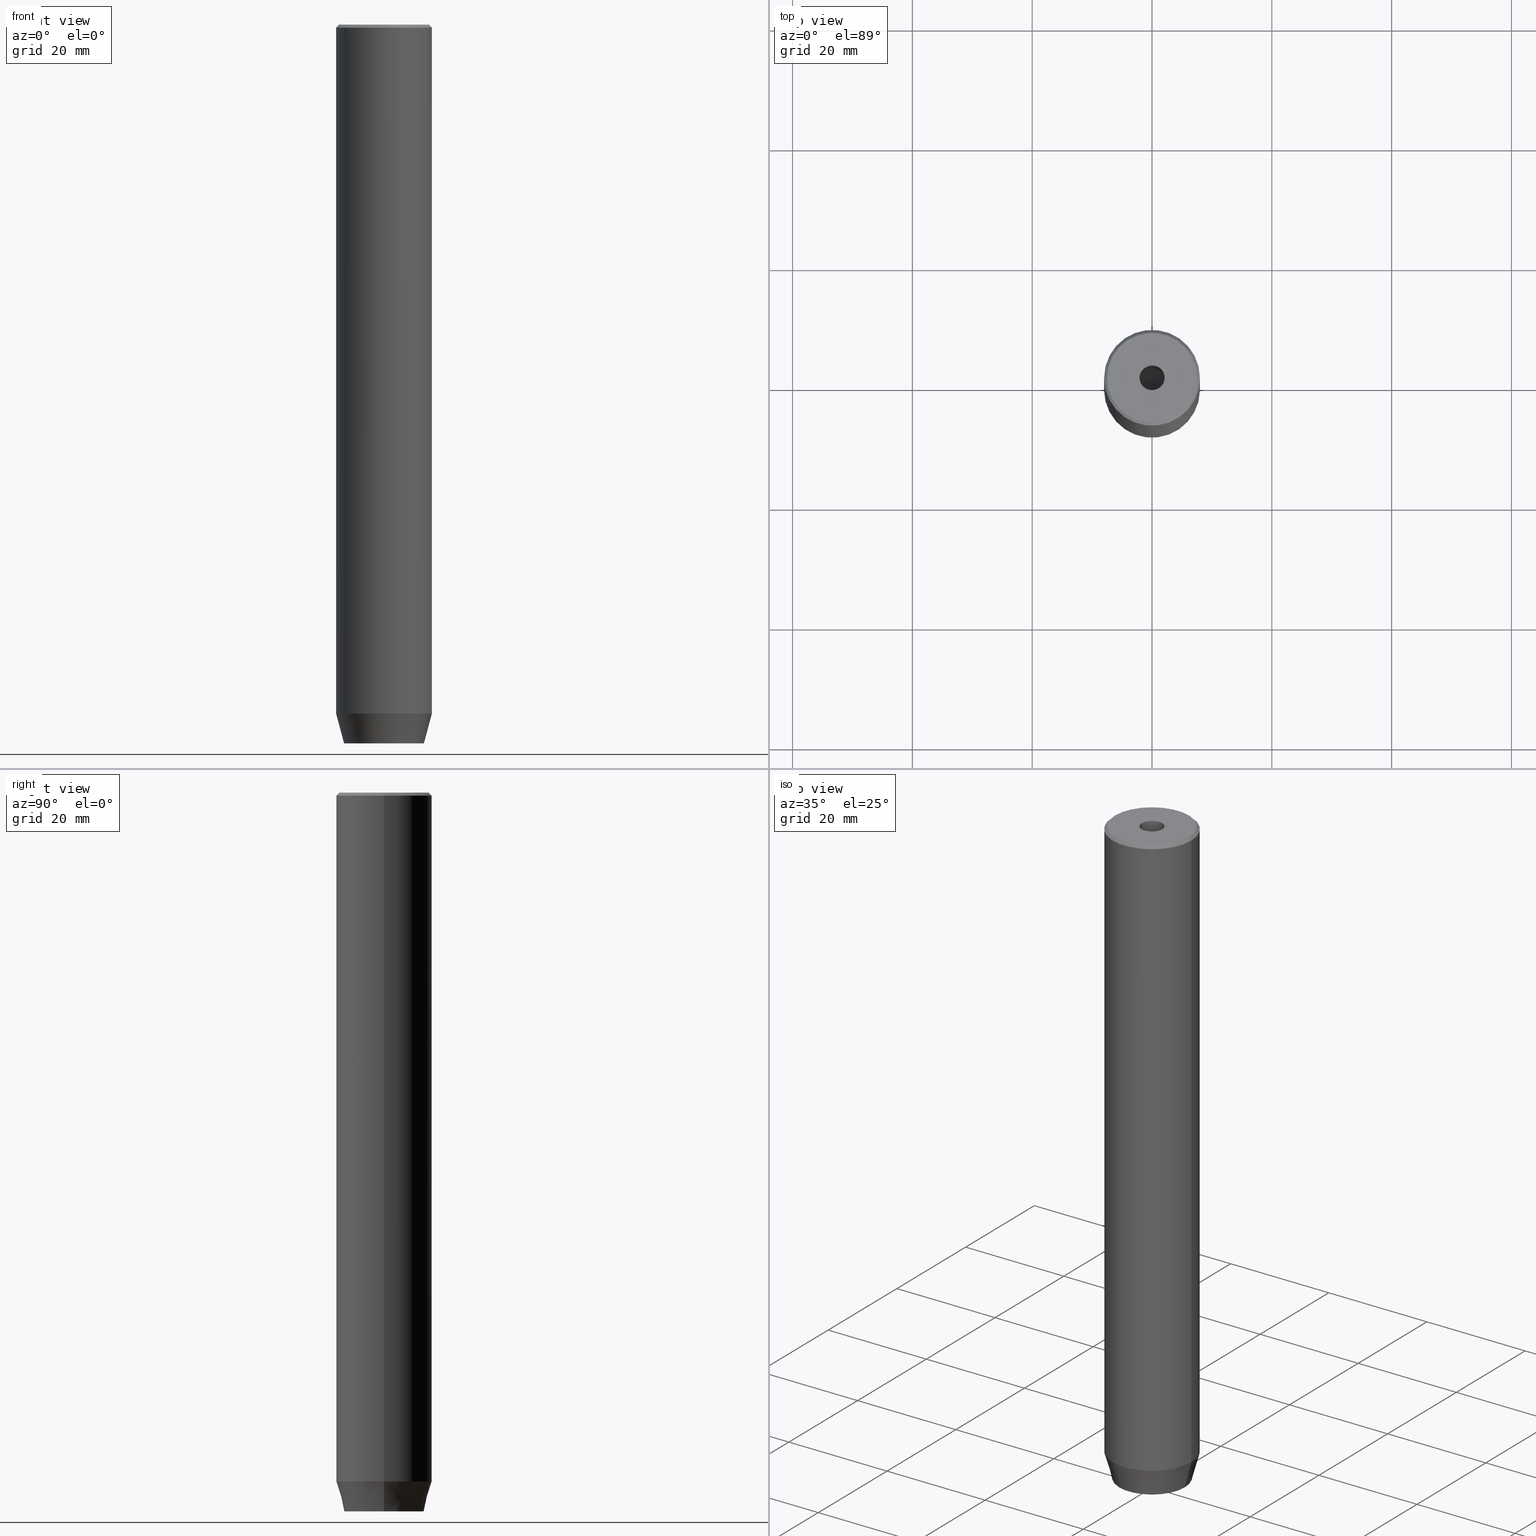
[diagram: canonical four-view strip — front | top / right | iso, engineering-drawing reading convention]
A machine part, canonical four-view strip (front | top / right | iso — engineering-drawing reading convention). The complete STEP part file that produces these views, byte-faithful:
ISO-10303-21;
HEADER;
FILE_DESCRIPTION (( 'STEP AP203' ),
    '1' );
FILE_NAME ('4951.STEP',
    '2024-01-02T20:39:47',
    ( '' ),
    ( '' ),
    'SwSTEP 2.0',
    'SolidWorks 2019',
    '' );
FILE_SCHEMA (( 'CONFIG_CONTROL_DESIGN' ));
ENDSEC;

DATA;
#1 = LINE ( 'NONE', #540, #206 ) ;
#2 = CARTESIAN_POINT ( 'NONE',  ( 0.000000000000000000, 0.000000000000000000, -20.00000000000000000 ) ) ;
#3 = AXIS2_PLACEMENT_3D ( 'NONE', #2, #49, #173 ) ;
#4 = VERTEX_POINT ( 'NONE', #41 ) ;
#5 = VECTOR ( 'NONE', #378, 1000.000000000000000 ) ;
#6 = CARTESIAN_POINT ( 'NONE',  ( -3.000000000000000444, -7.511572993685800087E-16, -120.0000000000000000 ) ) ;
#7 = DIRECTION ( 'NONE',  ( -0.000000000000000000, -0.000000000000000000, 1.000000000000000000 ) ) ;
#8 = PERSON_AND_ORGANIZATION ( #271, #510 ) ;
#9 = AXIS2_PLACEMENT_3D ( 'NONE', #104, #286, #417 ) ;
#10 = PLANE ( 'NONE',  #396 ) ;
#11 = DIRECTION ( 'NONE',  ( -0.000000000000000000, -0.000000000000000000, -1.000000000000000000 ) ) ;
#12 = ORIENTED_EDGE ( 'NONE', *, *, #315, .F. ) ;
#13 = LINE ( 'NONE', #243, #569 ) ;
#14 = LINE ( 'NONE', #184, #5 ) ;
#15 = VERTEX_POINT ( 'NONE', #97 ) ;
#16 = CARTESIAN_POINT ( 'NONE',  ( 2.099999999999996092, 0.000000000000000000, -20.00000000000000000 ) ) ;
#17 = DIRECTION ( 'NONE',  ( -0.8660254037844385966, -0.5000000000000001110, 0.000000000000000000 ) ) ;
#18 = DIRECTION ( 'NONE',  ( -0.000000000000000000, -0.000000000000000000, 1.000000000000000000 ) ) ;
#19 = CIRCLE ( 'NONE', #558, 6.660254037844381969 ) ;
#20 = ORIENTED_EDGE ( 'NONE', *, *, #446, .T. ) ;
#21 = EDGE_CURVE ( 'NONE', #580, #531, #525, .T. ) ;
#22 = LINE ( 'NONE', #279, #550 ) ;
#23 = CARTESIAN_POINT ( 'NONE',  ( 7.499999999999978684, 9.491012693391973982E-16, 0.000000000000000000 ) ) ;
#24 = ADVANCED_FACE ( 'NONE', ( #541 ), #515, .T. ) ;
#25 = CARTESIAN_POINT ( 'NONE',  ( -1.500000000000000666, -2.598076211353316456, -117.2000000000000028 ) ) ;
#26 = DIRECTION ( 'NONE',  ( 1.000000000000000000, 0.000000000000000000, 0.000000000000000000 ) ) ;
#27 = FACE_OUTER_BOUND ( 'NONE', #355, .T. ) ;
#28 = VERTEX_POINT ( 'NONE', #94 ) ;
#29 = VECTOR ( 'NONE', #492, 1000.000000000000000 ) ;
#30 = VECTOR ( 'NONE', #487, 1000.000000000000000 ) ;
#31 = FACE_OUTER_BOUND ( 'NONE', #277, .T. ) ;
#32 = EDGE_CURVE ( 'NONE', #4, #460, #273, .T. ) ;
#33 = CARTESIAN_POINT ( 'NONE',  ( 0.000000000000000000, 0.000000000000000000, 0.000000000000000000 ) ) ;
#34 = CARTESIAN_POINT ( 'NONE',  ( -3.000000000000000888, 1.732050807568876527, -117.2000000000000028 ) ) ;
#35 = APPLICATION_PROTOCOL_DEFINITION ( 'international standard', 'config_control_design', 1994, #432 ) ;
#36 = DIRECTION ( 'NONE',  ( 0.000000000000000000, 0.000000000000000000, 1.000000000000000000 ) ) ;
#37 = ORIENTED_EDGE ( 'NONE', *, *, #342, .T. ) ;
#38 = DIRECTION ( 'NONE',  ( 1.000000000000000000, 0.000000000000000000, 0.000000000000000000 ) ) ;
#39 = APPROVAL_DATE_TIME ( #581, #164 ) ;
#40 = ADVANCED_FACE ( 'NONE', ( #504 ), #265, .F. ) ;
#41 = CARTESIAN_POINT ( 'NONE',  ( -3.000000000000000888, 1.732050807568876527, -120.0000000000000000 ) ) ;
#42 = PERSON_AND_ORGANIZATION_ROLE ( 'design_supplier' ) ;
#43 = ORIENTED_EDGE ( 'NONE', *, *, #315, .T. ) ;
#44 = VECTOR ( 'NONE', #301, 1000.000000000000000 ) ;
#45 = CARTESIAN_POINT ( 'NONE',  ( -1.500000000000000666, -2.598076211353316456, -120.0000000000000000 ) ) ;
#46 = CARTESIAN_POINT ( 'NONE',  ( -1.499999999999999556, 2.598076211353316012, -117.2000000000000028 ) ) ;
#47 = ADVANCED_FACE ( 'NONE', ( #586 ), #169, .T. ) ;
#48 = ORIENTED_EDGE ( 'NONE', *, *, #512, .F. ) ;
#49 = DIRECTION ( 'NONE',  ( -0.000000000000000000, -0.000000000000000000, 1.000000000000000000 ) ) ;
#50 = COORDINATED_UNIVERSAL_TIME_OFFSET ( 1, 0, .AHEAD. ) ;
#51 = ORIENTED_EDGE ( 'NONE', *, *, #328, .T. ) ;
#52 = FACE_OUTER_BOUND ( 'NONE', #144, .T. ) ;
#53 = CARTESIAN_POINT ( 'NONE',  ( 0.000000000000000000, 0.000000000000000000, -1.990051048614449116E-16 ) ) ;
#54 = CIRCLE ( 'NONE', #280, 2.099999999999998757 ) ;
#55 = ORIENTED_EDGE ( 'NONE', *, *, #383, .F. ) ;
#56 = VECTOR ( 'NONE', #289, 1000.000000000000000 ) ;
#57 = EDGE_CURVE ( 'NONE', #392, #266, #100, .T. ) ;
#58 = PLANE ( 'NONE',  #166 ) ;
#59 = ORIENTED_EDGE ( 'NONE', *, *, #383, .T. ) ;
#60 = CARTESIAN_POINT ( 'NONE',  ( -2.168404344971008868E-16, -3.464101615137754830, -120.0000000000000000 ) ) ;
#61 = CARTESIAN_POINT ( 'NONE',  ( 1.500000000000000222, -2.598076211353315568, -117.2000000000000028 ) ) ;
#62 = AXIS2_PLACEMENT_3D ( 'NONE', #332, #521, #187 ) ;
#63 = DIRECTION ( 'NONE',  ( 0.000000000000000000, -0.000000000000000000, 1.000000000000000000 ) ) ;
#64 = EDGE_CURVE ( 'NONE', #313, #397, #365, .T. ) ;
#65 = ORIENTED_EDGE ( 'NONE', *, *, #459, .T. ) ;
#66 = CARTESIAN_POINT ( 'NONE',  ( 1.500000000000000222, 2.598076211353315568, -117.2000000000000028 ) ) ;
#67 = AXIS2_PLACEMENT_3D ( 'NONE', #423, #109, #26 ) ;
#68 = PLANE ( 'NONE',  #579 ) ;
#69 = EDGE_LOOP ( 'NONE', ( #455, #527, #445, #250 ) ) ;
#70 = DIRECTION ( 'NONE',  ( -0.8571673007021111124, 1.049727191138617217E-16, 0.5150380749100562650 ) ) ;
#71 = FACE_OUTER_BOUND ( 'NONE', #560, .T. ) ;
#72 = ORIENTED_EDGE ( 'NONE', *, *, #482, .T. ) ;
#73 = DIRECTION ( 'NONE',  ( -1.000000000000000000, 0.000000000000000000, -0.000000000000000000 ) ) ;
#74 = APPLICATION_CONTEXT ( 'configuration controlled 3d designs of mechanical parts and assemblies' ) ;
#75 = CIRCLE ( 'NONE', #475, 8.000000000000000000 ) ;
#76 = PLANE ( 'NONE',  #189 ) ;
#77 = CARTESIAN_POINT ( 'NONE',  ( -3.000000000000000000, -1.732050807568877859, -117.2000000000000028 ) ) ;
#78 = ADVANCED_FACE ( 'NONE', ( #148 ), #284, .F. ) ;
#79 = AXIS2_PLACEMENT_3D ( 'NONE', #490, #36, #81 ) ;
#80 = ORIENTED_EDGE ( 'NONE', *, *, #426, .T. ) ;
#81 = DIRECTION ( 'NONE',  ( 1.000000000000000000, 0.000000000000000000, 0.000000000000000000 ) ) ;
#82 = VERTEX_POINT ( 'NONE', #429 ) ;
#83 = CARTESIAN_POINT ( 'NONE',  ( -1.084202172485504434E-16, 3.464101615137754830, -117.2000000000000028 ) ) ;
#84 = PERSON_AND_ORGANIZATION ( #271, #510 ) ;
#85 = ORIENTED_EDGE ( 'NONE', *, *, #225, .F. ) ;
#86 = CIRCLE ( 'NONE', #154, 8.000000000000000000 ) ;
#87 = DATE_TIME_ROLE ( 'creation_date' ) ;
#88 = ORIENTED_EDGE ( 'NONE', *, *, #160, .F. ) ;
#89 = CARTESIAN_POINT ( 'NONE',  ( 3.000000000000000000, -1.732050807568876527, -120.0000000000000000 ) ) ;
#90 = ORIENTED_EDGE ( 'NONE', *, *, #342, .F. ) ;
#91 = ORIENTED_EDGE ( 'NONE', *, *, #188, .F. ) ;
#92 = EDGE_CURVE ( 'NONE', #460, #131, #466, .T. ) ;
#93 = CARTESIAN_POINT ( 'NONE',  ( -1.084202172485504434E-16, 3.464101615137754830, -117.2000000000000028 ) ) ;
#94 = CARTESIAN_POINT ( 'NONE',  ( -7.499999999999978684, 0.000000000000000000, 0.000000000000000000 ) ) ;
#95 = ORIENTED_EDGE ( 'NONE', *, *, #536, .T. ) ;
#96 = CYLINDRICAL_SURFACE ( 'NONE', #471, 2.099999999999997424 ) ;
#97 = CARTESIAN_POINT ( 'NONE',  ( -8.000000000000000000, 9.797174393178825657E-16, -0.5000000000000213163 ) ) ;
#98 = ORIENTED_EDGE ( 'NONE', *, *, #578, .F. ) ;
#99 = DIRECTION ( 'NONE',  ( -1.000000000000000000, 0.000000000000000000, -0.000000000000000000 ) ) ;
#100 = CIRCLE ( 'NONE', #3, 2.099999999999996092 ) ;
#101 = ADVANCED_FACE ( 'NONE', ( #287 ), #68, .F. ) ;
#102 = ORIENTED_EDGE ( 'NONE', *, *, #426, .F. ) ;
#103 = EDGE_CURVE ( 'NONE', #366, #402, #146, .T. ) ;
#104 = CARTESIAN_POINT ( 'NONE',  ( 0.000000000000000000, 0.000000000000000000, 0.000000000000000000 ) ) ;
#105 = VERTEX_POINT ( 'NONE', #23 ) ;
#106 = LINE ( 'NONE', #66, #567 ) ;
#107 = CARTESIAN_POINT ( 'NONE',  ( 3.000000000000000000, 1.732050807568876527, -120.0000000000000000 ) ) ;
#108 = DIRECTION ( 'NONE',  ( 1.000000000000000000, 0.000000000000000000, 0.000000000000000000 ) ) ;
#109 = DIRECTION ( 'NONE',  ( -0.000000000000000000, -0.000000000000000000, 1.000000000000000000 ) ) ;
#110 = ORIENTED_EDGE ( 'NONE', *, *, #92, .T. ) ;
#111 = DIRECTION ( 'NONE',  ( 0.000000000000000000, 0.000000000000000000, -1.000000000000000000 ) ) ;
#112 = VECTOR ( 'NONE', #451, 1000.000000000000000 ) ;
#113 = FACE_BOUND ( 'NONE', #201, .T. ) ;
#114 = VECTOR ( 'NONE', #430, 1000.000000000000000 ) ;
#115 = DIRECTION ( 'NONE',  ( 2.503857664561933362E-16, -1.000000000000000000, 0.000000000000000000 ) ) ;
#116 = FACE_OUTER_BOUND ( 'NONE', #141, .T. ) ;
#117 = CARTESIAN_POINT ( 'NONE',  ( 0.000000000000000000, 6.660254037844381969, -120.0000000000000000 ) ) ;
#118 = DIRECTION ( 'NONE',  ( -0.000000000000000000, 0.000000000000000000, -1.000000000000000000 ) ) ;
#119 = ADVANCED_BREP_SHAPE_REPRESENTATION ( '4951', ( #126, #79 ), #210 ) ;
#120 = CARTESIAN_POINT ( 'NONE',  ( 2.099999999999997424, 0.000000000000000000, 0.000000000000000000 ) ) ;
#121 = CIRCLE ( 'NONE', #369, 7.499999999999978684 ) ;
#122 = PERSON_AND_ORGANIZATION ( #271, #510 ) ;
#123 = DIRECTION ( 'NONE',  ( -0.000000000000000000, -0.000000000000000000, 1.000000000000000000 ) ) ;
#124 = MECHANICAL_CONTEXT ( 'NONE', #74, 'mechanical' ) ;
#125 = ORIENTED_EDGE ( 'NONE', *, *, #291, .T. ) ;
#126 = MANIFOLD_SOLID_BREP ( 'Vrt�k z�vitn�ku pro M5 z�vit1', #228 ) ;
#127 = COORDINATED_UNIVERSAL_TIME_OFFSET ( 1, 0, .AHEAD. ) ;
#128 = ORIENTED_EDGE ( 'NONE', *, *, #523, .T. ) ;
#129 = APPROVAL_PERSON_ORGANIZATION ( #122, #403, #302 ) ;
#130 = EDGE_LOOP ( 'NONE', ( #577, #138, #306, #549 ) ) ;
#131 = VERTEX_POINT ( 'NONE', #107 ) ;
#132 = CARTESIAN_POINT ( 'NONE',  ( -8.000000000000000000, 9.797174393178825657E-16, -114.9999999999999858 ) ) ;
#133 = DIRECTION ( 'NONE',  ( -0.000000000000000000, -0.000000000000000000, 1.000000000000000000 ) ) ;
#134 = COORDINATED_UNIVERSAL_TIME_OFFSET ( 1, 0, .AHEAD. ) ;
#135 = ORIENTED_EDGE ( 'NONE', *, *, #149, .F. ) ;
#136 = APPROVAL_STATUS ( 'not_yet_approved' ) ;
#137 = AXIS2_PLACEMENT_3D ( 'NONE', #142, #503, #99 ) ;
#138 = ORIENTED_EDGE ( 'NONE', *, *, #208, .F. ) ;
#139 = DIRECTION ( 'NONE',  ( -0.8660254037844385966, 0.5000000000000001110, 0.000000000000000000 ) ) ;
#140 = CARTESIAN_POINT ( 'NONE',  ( 0.000000000000000000, 0.000000000000000000, -114.9999999999999858 ) ) ;
#141 = EDGE_LOOP ( 'NONE', ( #435, #224, #345, #500 ) ) ;
#142 = CARTESIAN_POINT ( 'NONE',  ( 0.000000000000000000, 0.000000000000000000, -117.2000000000000028 ) ) ;
#143 = DIRECTION ( 'NONE',  ( -0.000000000000000000, -0.000000000000000000, 1.000000000000000000 ) ) ;
#144 = EDGE_LOOP ( 'NONE', ( #48, #438, #260 ) ) ;
#145 = CARTESIAN_POINT ( 'NONE',  ( -2.168404344971008868E-16, -3.464101615137754830, -117.2000000000000028 ) ) ;
#146 = LINE ( 'NONE', #61, #319 ) ;
#147 = LINE ( 'NONE', #285, #323 ) ;
#148 = FACE_OUTER_BOUND ( 'NONE', #552, .T. ) ;
#149 = EDGE_CURVE ( 'NONE', #501, #317, #75, .T. ) ;
#150 = ORIENTED_EDGE ( 'NONE', *, *, #195, .F. ) ;
#151 = DIRECTION ( 'NONE',  ( -0.000000000000000000, -0.000000000000000000, 1.000000000000000000 ) ) ;
#152 = DIRECTION ( 'NONE',  ( 0.7071067811865474617, 8.659560562354932858E-17, -0.7071067811865474617 ) ) ;
#153 = CONICAL_SURFACE ( 'NONE', #258, 8.000000000000000000, 0.2617993877991500740 ) ;
#154 = AXIS2_PLACEMENT_3D ( 'NONE', #156, #568, #38 ) ;
#155 = CARTESIAN_POINT ( 'NONE',  ( -2.099999999999996092, 2.571758278209436534E-16, -20.00000000000000000 ) ) ;
#156 = CARTESIAN_POINT ( 'NONE',  ( 0.000000000000000000, 0.000000000000000000, -0.5000000000000213163 ) ) ;
#157 = ORIENTED_EDGE ( 'NONE', *, *, #103, .T. ) ;
#158 = DIRECTION ( 'NONE',  ( 1.000000000000000000, 0.000000000000000000, 0.000000000000000000 ) ) ;
#159 = VECTOR ( 'NONE', #477, 1000.000000000000000 ) ;
#160 = EDGE_CURVE ( 'NONE', #105, #339, #385, .T. ) ;
#161 = ADVANCED_FACE ( 'NONE', ( #116 ), #294, .T. ) ;
#162 = ORIENTED_EDGE ( 'NONE', *, *, #502, .F. ) ;
#163 = APPROVAL_DATE_TIME ( #584, #403 ) ;
#164 = APPROVAL ( #395, 'NEUR�EN�' ) ;
#165 = CARTESIAN_POINT ( 'NONE',  ( -2.099999999999996092, 2.571758278209436534E-16, -20.00000000000000000 ) ) ;
#166 = AXIS2_PLACEMENT_3D ( 'NONE', #234, #63, #183 ) ;
#167 = ADVANCED_FACE ( 'NONE', ( #27 ), #517, .F. ) ;
#168 = PLANE ( 'NONE',  #307 ) ;
#169 = CYLINDRICAL_SURFACE ( 'NONE', #172, 8.000000000000000000 ) ;
#170 = CC_DESIGN_PERSON_AND_ORGANIZATION_ASSIGNMENT ( #480, #215, ( #335 ) ) ;
#171 = LINE ( 'NONE', #458, #288 ) ;
#172 = AXIS2_PLACEMENT_3D ( 'NONE', #362, #226, #407 ) ;
#173 = DIRECTION ( 'NONE',  ( 1.000000000000000000, 0.000000000000000000, 0.000000000000000000 ) ) ;
#174 = APPROVAL_ROLE ( '' ) ;
#175 = AXIS2_PLACEMENT_3D ( 'NONE', #194, #386, #463 ) ;
#176 = VERTEX_POINT ( 'NONE', #418 ) ;
#177 = FACE_OUTER_BOUND ( 'NONE', #587, .T. ) ;
#178 = CALENDAR_DATE ( 2024, 2, 1 ) ;
#179 = ORIENTED_EDGE ( 'NONE', *, *, #32, .F. ) ;
#180 = LINE ( 'NONE', #372, #325 ) ;
#181 = CALENDAR_DATE ( 2024, 2, 1 ) ;
#182 = ORIENTED_EDGE ( 'NONE', *, *, #467, .F. ) ;
#183 = DIRECTION ( 'NONE',  ( 1.000000000000000000, 0.000000000000000000, 0.000000000000000000 ) ) ;
#184 = CARTESIAN_POINT ( 'NONE',  ( 3.000000000000000000, 0.000000000000000000, -120.0000000000000000 ) ) ;
#185 = ORIENTED_EDGE ( 'NONE', *, *, #267, .T. ) ;
#186 = FACE_OUTER_BOUND ( 'NONE', #356, .T. ) ;
#187 = DIRECTION ( 'NONE',  ( -1.000000000000000000, 0.000000000000000000, 0.000000000000000000 ) ) ;
#188 = EDGE_CURVE ( 'NONE', #131, #313, #14, .T. ) ;
#189 = AXIS2_PLACEMENT_3D ( 'NONE', #197, #433, #118 ) ;
#190 = DIRECTION ( 'NONE',  ( -1.000000000000000000, -2.503857664561933362E-16, 0.000000000000000000 ) ) ;
#191 = CARTESIAN_POINT ( 'NONE',  ( 0.000000000000000000, 0.000000000000000000, -114.9999999999999858 ) ) ;
#192 = DIRECTION ( 'NONE',  ( -0.000000000000000000, -0.000000000000000000, 1.000000000000000000 ) ) ;
#193 = CARTESIAN_POINT ( 'NONE',  ( 0.000000000000000000, 0.000000000000000000, -0.5000000000000213163 ) ) ;
#194 = CARTESIAN_POINT ( 'NONE',  ( 0.000000000000000000, 0.000000000000000000, -20.00000000000000000 ) ) ;
#195 = EDGE_CURVE ( 'NONE', #266, #392, #375, .T. ) ;
#196 = ORIENTED_EDGE ( 'NONE', *, *, #328, .F. ) ;
#197 = CARTESIAN_POINT ( 'NONE',  ( 3.000000000000000000, 0.000000000000000000, -117.2000000000000028 ) ) ;
#198 = CIRCLE ( 'NONE', #333, 2.099999999999998757 ) ;
#199 = CC_DESIGN_APPROVAL ( #164, ( #335 ) ) ;
#200 = LINE ( 'NONE', #436, #30 ) ;
#201 = EDGE_LOOP ( 'NONE', ( #481, #439 ) ) ;
#202 = DIRECTION ( 'NONE',  ( 0.000000000000000000, 0.000000000000000000, -1.000000000000000000 ) ) ;
#203 = LINE ( 'NONE', #488, #563 ) ;
#204 = ORIENTED_EDGE ( 'NONE', *, *, #208, .T. ) ;
#205 = VECTOR ( 'NONE', #406, 999.9999999999998863 ) ;
#206 = VECTOR ( 'NONE', #220, 1000.000000000000000 ) ;
#207 = ORIENTED_EDGE ( 'NONE', *, *, #21, .F. ) ;
#208 = EDGE_CURVE ( 'NONE', #274, #4, #327, .T. ) ;
#209 = ORIENTED_EDGE ( 'NONE', *, *, #415, .T. ) ;
#210 =( GEOMETRIC_REPRESENTATION_CONTEXT ( 3 ) GLOBAL_UNCERTAINTY_ASSIGNED_CONTEXT ( ( #443 ) ) GLOBAL_UNIT_ASSIGNED_CONTEXT ( ( #246, #334, #349 ) ) REPRESENTATION_CONTEXT ( 'NONE', 'WORKASPACE' ) );
#211 = ORIENTED_EDGE ( 'NONE', *, *, #351, .T. ) ;
#212 = APPROVAL_STATUS ( 'not_yet_approved' ) ;
#213 = ORIENTED_EDGE ( 'NONE', *, *, #218, .F. ) ;
#214 = ORIENTED_EDGE ( 'NONE', *, *, #291, .F. ) ;
#215 = PERSON_AND_ORGANIZATION_ROLE ( 'creator' ) ;
#216 = VECTOR ( 'NONE', #152, 1000.000000000000114 ) ;
#217 = DIRECTION ( 'NONE',  ( -0.000000000000000000, -0.000000000000000000, -1.000000000000000000 ) ) ;
#218 = EDGE_CURVE ( 'NONE', #473, #176, #203, .T. ) ;
#219 = PERSON_AND_ORGANIZATION ( #271, #510 ) ;
#220 = DIRECTION ( 'NONE',  ( -2.503857664561932376E-16, 1.000000000000000000, 0.000000000000000000 ) ) ;
#221 = CC_DESIGN_SECURITY_CLASSIFICATION ( #300, ( #335 ) ) ;
#222 = DIRECTION ( 'NONE',  ( -0.8660254037844387076, -0.4999999999999999445, 0.000000000000000000 ) ) ;
#223 = CC_DESIGN_PERSON_AND_ORGANIZATION_ASSIGNMENT ( #8, #42, ( #335 ) ) ;
#224 = ORIENTED_EDGE ( 'NONE', *, *, #160, .T. ) ;
#225 = EDGE_CURVE ( 'NONE', #176, #4, #373, .T. ) ;
#226 = DIRECTION ( 'NONE',  ( -0.000000000000000000, -0.000000000000000000, 1.000000000000000000 ) ) ;
#227 = ORIENTED_EDGE ( 'NONE', *, *, #351, .F. ) ;
#228 = CLOSED_SHELL ( 'NONE', ( #410, #167, #161, #24, #47, #529, #456, #457, #388, #565, #40, #519, #101, #249, #546, #78, #244, #575, #237 ) ) ;
#229 = ORIENTED_EDGE ( 'NONE', *, *, #566, .F. ) ;
#230 = DIRECTION ( 'NONE',  ( -0.000000000000000000, -0.000000000000000000, 1.000000000000000000 ) ) ;
#231 = VECTOR ( 'NONE', #381, 999.9999999999998863 ) ;
#232 = LOCAL_TIME ( 21, 39, 47.00000000000000000, #50 ) ;
#233 = ORIENTED_EDGE ( 'NONE', *, *, #446, .F. ) ;
#234 = CARTESIAN_POINT ( 'NONE',  ( 0.000000000000000000, 0.000000000000000000, 0.000000000000000000 ) ) ;
#235 = APPROVAL_DATE_TIME ( #370, #347 ) ;
#236 = DIRECTION ( 'NONE',  ( 1.000000000000000000, 0.000000000000000000, 0.000000000000000000 ) ) ;
#237 = ADVANCED_FACE ( 'NONE', ( #177 ), #96, .F. ) ;
#238 = CARTESIAN_POINT ( 'NONE',  ( 0.000000000000000000, 0.000000000000000000, -114.9999999999999858 ) ) ;
#239 = CYLINDRICAL_SURFACE ( 'NONE', #67, 8.000000000000000000 ) ;
#240 = DIRECTION ( 'NONE',  ( -0.8660254037844385966, -0.5000000000000001110, 0.000000000000000000 ) ) ;
#241 = VECTOR ( 'NONE', #139, 1000.000000000000000 ) ;
#242 = DIRECTION ( 'NONE',  ( -1.000000000000000000, 0.000000000000000000, 0.000000000000000000 ) ) ;
#243 = CARTESIAN_POINT ( 'NONE',  ( 3.000000000000000000, 1.732050807568876527, -117.2000000000000028 ) ) ;
#244 = ADVANCED_FACE ( 'NONE', ( #551 ), #583, .T. ) ;
#245 = CARTESIAN_POINT ( 'NONE',  ( -1.500000000000000666, -2.598076211353316456, -117.2000000000000028 ) ) ;
#246 =( LENGTH_UNIT ( ) NAMED_UNIT ( * ) SI_UNIT ( .MILLI., .METRE. ) );
#247 = EDGE_CURVE ( 'NONE', #473, #274, #1, .T. ) ;
#248 = DIRECTION ( 'NONE',  ( 0.8660254037844385966, -0.5000000000000001110, 0.000000000000000000 ) ) ;
#249 = ADVANCED_FACE ( 'NONE', ( #494 ), #168, .F. ) ;
#250 = ORIENTED_EDGE ( 'NONE', *, *, #578, .T. ) ;
#251 = CARTESIAN_POINT ( 'NONE',  ( 6.660254037844381969, 0.000000000000000000, -120.0000000000000000 ) ) ;
#252 = VECTOR ( 'NONE', #422, 1000.000000000000000 ) ;
#253 = AXIS2_PLACEMENT_3D ( 'NONE', #376, #556, #511 ) ;
#254 = LINE ( 'NONE', #120, #44 ) ;
#255 = EDGE_CURVE ( 'NONE', #402, #397, #171, .T. ) ;
#256 = ORIENTED_EDGE ( 'NONE', *, *, #424, .T. ) ;
#257 = VECTOR ( 'NONE', #217, 1000.000000000000000 ) ;
#258 = AXIS2_PLACEMENT_3D ( 'NONE', #191, #151, #384 ) ;
#259 = LOCAL_TIME ( 21, 39, 47.00000000000000000, #127 ) ;
#260 = ORIENTED_EDGE ( 'NONE', *, *, #57, .T. ) ;
#261 = CARTESIAN_POINT ( 'NONE',  ( 8.000000000000000000, 0.000000000000000000, -114.9999999999999858 ) ) ;
#262 = ORIENTED_EDGE ( 'NONE', *, *, #282, .F. ) ;
#263 = VECTOR ( 'NONE', #240, 1000.000000000000000 ) ;
#264 = CARTESIAN_POINT ( 'NONE',  ( -2.099999999999998757, 2.571758278209440478E-16, -1.990051048614449116E-16 ) ) ;
#265 = PLANE ( 'NONE',  #276 ) ;
#266 = VERTEX_POINT ( 'NONE', #165 ) ;
#267 = EDGE_CURVE ( 'NONE', #489, #270, #198, .T. ) ;
#268 = CIRCLE ( 'NONE', #308, 8.000000000000000000 ) ;
#269 = DIRECTION ( 'NONE',  ( -0.4999999999999999445, 0.8660254037844387076, 0.000000000000000000 ) ) ;
#270 = VERTEX_POINT ( 'NONE', #264 ) ;
#271 = PERSON ( 'NEUR�EN�', 'NEUR�EN�', 'NEUR�EN�', ('NEUR�EN�'), ('NEUR�EN�'), ('NEUR�EN�') ) ;
#272 = DIRECTION ( 'NONE',  ( -0.000000000000000000, -0.000000000000000000, 1.000000000000000000 ) ) ;
#273 = LINE ( 'NONE', #495, #205 ) ;
#274 = VERTEX_POINT ( 'NONE', #361 ) ;
#275 = CARTESIAN_POINT ( 'NONE',  ( 1.500000000000000222, -2.598076211353315568, -117.2000000000000028 ) ) ;
#276 = AXIS2_PLACEMENT_3D ( 'NONE', #46, #269, #222 ) ;
#277 = EDGE_LOOP ( 'NONE', ( #88, #55, #256, #545 ) ) ;
#278 = LINE ( 'NONE', #476, #114 ) ;
#279 = CARTESIAN_POINT ( 'NONE',  ( 8.000000000000000000, 0.000000000000000000, 0.000000000000000000 ) ) ;
#280 = AXIS2_PLACEMENT_3D ( 'NONE', #428, #143, #108 ) ;
#281 = LOCAL_TIME ( 21, 39, 47.00000000000000000, #496 ) ;
#282 = EDGE_CURVE ( 'NONE', #82, #392, #309, .T. ) ;
#283 = CARTESIAN_POINT ( 'NONE',  ( 0.000000000000000000, 0.000000000000000000, 0.000000000000000000 ) ) ;
#284 = PLANE ( 'NONE',  #505 ) ;
#285 = CARTESIAN_POINT ( 'NONE',  ( -7.499999999999978684, 0.000000000000000000, 0.000000000000000000 ) ) ;
#286 = DIRECTION ( 'NONE',  ( -0.000000000000000000, -0.000000000000000000, 1.000000000000000000 ) ) ;
#287 = FACE_OUTER_BOUND ( 'NONE', #411, .T. ) ;
#288 = VECTOR ( 'NONE', #547, 1000.000000000000000 ) ;
#289 = DIRECTION ( 'NONE',  ( -0.8660254037844385966, 0.5000000000000001110, 0.000000000000000000 ) ) ;
#290 = AXIS2_PLACEMENT_3D ( 'NONE', #193, #111, #158 ) ;
#291 = EDGE_CURVE ( 'NONE', #497, #460, #498, .T. ) ;
#292 = FACE_OUTER_BOUND ( 'NONE', #465, .T. ) ;
#293 = LINE ( 'NONE', #155, #570 ) ;
#294 = CONICAL_SURFACE ( 'NONE', #62, 7.499999999999978684, 0.7853981633974482790 ) ;
#295 = CC_DESIGN_DATE_AND_TIME_ASSIGNMENT ( #360, #87, ( #582 ) ) ;
#296 = ORIENTED_EDGE ( 'NONE', *, *, #32, .T. ) ;
#297 = CARTESIAN_POINT ( 'NONE',  ( 0.000000000000000000, 0.000000000000000000, 0.000000000000000000 ) ) ;
#298 = EDGE_LOOP ( 'NONE', ( #179, #85, #196, #416, #91, #572 ) ) ;
#299 = VECTOR ( 'NONE', #374, 1000.000000000000000 ) ;
#300 = SECURITY_CLASSIFICATION ( '', '', #508 ) ;
#301 = DIRECTION ( 'NONE',  ( -0.000000000000000000, -0.000000000000000000, 1.000000000000000000 ) ) ;
#302 = APPROVAL_ROLE ( '' ) ;
#303 = ORIENTED_EDGE ( 'NONE', *, *, #354, .T. ) ;
#304 = DIRECTION ( 'NONE',  ( 1.000000000000000000, 0.000000000000000000, 0.000000000000000000 ) ) ;
#305 = EDGE_LOOP ( 'NONE', ( #350, #449, #128, #233 ) ) ;
#306 = ORIENTED_EDGE ( 'NONE', *, *, #247, .F. ) ;
#307 = AXIS2_PLACEMENT_3D ( 'NONE', #275, #314, #453 ) ;
#308 = AXIS2_PLACEMENT_3D ( 'NONE', #346, #123, #304 ) ;
#309 = LINE ( 'NONE', #447, #29 ) ;
#310 = ORIENTED_EDGE ( 'NONE', *, *, #502, .T. ) ;
#311 = LINE ( 'NONE', #45, #241 ) ;
#312 = DIRECTION ( 'NONE',  ( 1.000000000000000000, 0.000000000000000000, 0.000000000000000000 ) ) ;
#313 = VERTEX_POINT ( 'NONE', #89 ) ;
#314 = DIRECTION ( 'NONE',  ( 0.5000000000000001110, -0.8660254037844385966, 0.000000000000000000 ) ) ;
#315 = EDGE_CURVE ( 'NONE', #531, #501, #543, .T. ) ;
#316 = VERTEX_POINT ( 'NONE', #444 ) ;
#317 = VERTEX_POINT ( 'NONE', #132 ) ;
#318 = FACE_OUTER_BOUND ( 'NONE', #348, .T. ) ;
#319 = VECTOR ( 'NONE', #17, 1000.000000000000000 ) ;
#320 = ORIENTED_EDGE ( 'NONE', *, *, #255, .T. ) ;
#321 = CC_DESIGN_PERSON_AND_ORGANIZATION_ASSIGNMENT ( #485, #398, ( #582 ) ) ;
#322 = CARTESIAN_POINT ( 'NONE',  ( 0.000000000000000000, 0.000000000000000000, -120.0000000000000000 ) ) ;
#323 = VECTOR ( 'NONE', #331, 1000.000000000000114 ) ;
#324 = CARTESIAN_POINT ( 'NONE',  ( 1.500000000000000222, 2.598076211353315568, -117.2000000000000028 ) ) ;
#325 = VECTOR ( 'NONE', #553, 1000.000000000000000 ) ;
#326 = DIRECTION ( 'NONE',  ( 0.8660254037844385966, -0.5000000000000001110, 0.000000000000000000 ) ) ;
#327 = LINE ( 'NONE', #34, #159 ) ;
#328 = EDGE_CURVE ( 'NONE', #397, #176, #311, .T. ) ;
#329 = DIRECTION ( 'NONE',  ( -0.000000000000000000, -0.000000000000000000, -1.000000000000000000 ) ) ;
#330 = CARTESIAN_POINT ( 'NONE',  ( 1.500000000000000222, 2.598076211353315568, -120.0000000000000000 ) ) ;
#331 = DIRECTION ( 'NONE',  ( -0.7071067811865474617, 0.000000000000000000, -0.7071067811865474617 ) ) ;
#332 = CARTESIAN_POINT ( 'NONE',  ( 0.000000000000000000, 0.000000000000000000, 0.000000000000000000 ) ) ;
#333 = AXIS2_PLACEMENT_3D ( 'NONE', #53, #230, #405 ) ;
#334 =( NAMED_UNIT ( * ) PLANE_ANGLE_UNIT ( ) SI_UNIT ( $, .RADIAN. ) );
#335 = PRODUCT_DEFINITION_FORMATION_WITH_SPECIFIED_SOURCE ( 'LIBOVOLN�', '', #574, .NOT_KNOWN. ) ;
#336 = DIRECTION ( 'NONE',  ( -0.8660254037844385966, 0.5000000000000001110, 0.000000000000000000 ) ) ;
#337 = FACE_OUTER_BOUND ( 'NONE', #130, .T. ) ;
#338 = DIRECTION ( 'NONE',  ( -0.000000000000000000, -0.000000000000000000, 1.000000000000000000 ) ) ;
#339 = VERTEX_POINT ( 'NONE', #559 ) ;
#340 = PLANE ( 'NONE',  #379 ) ;
#341 = CARTESIAN_POINT ( 'NONE',  ( -2.168404344971008868E-16, 3.464101615137754830, -120.0000000000000000 ) ) ;
#342 = EDGE_CURVE ( 'NONE', #497, #316, #106, .T. ) ;
#343 = ORIENTED_EDGE ( 'NONE', *, *, #512, .T. ) ;
#344 = APPLICATION_PROTOCOL_DEFINITION ( 'international standard', 'config_control_design', 1994, #74 ) ;
#345 = ORIENTED_EDGE ( 'NONE', *, *, #523, .F. ) ;
#346 = CARTESIAN_POINT ( 'NONE',  ( 0.000000000000000000, 0.000000000000000000, -114.9999999999999858 ) ) ;
#347 = APPROVAL ( #136, 'NEUR�EN�' ) ;
#348 = EDGE_LOOP ( 'NONE', ( #419, #207 ) ) ;
#349 =( NAMED_UNIT ( * ) SI_UNIT ( $, .STERADIAN. ) SOLID_ANGLE_UNIT ( ) );
#350 = ORIENTED_EDGE ( 'NONE', *, *, #149, .T. ) ;
#351 = EDGE_CURVE ( 'NONE', #266, #270, #461, .T. ) ;
#352 = ORIENTED_EDGE ( 'NONE', *, *, #437, .T. ) ;
#353 = PERSON_AND_ORGANIZATION_ROLE ( 'design_owner' ) ;
#354 = EDGE_CURVE ( 'NONE', #270, #489, #54, .T. ) ;
#355 = EDGE_LOOP ( 'NONE', ( #262, #343, #555 ) ) ;
#356 = EDGE_LOOP ( 'NONE', ( #150, #211, #303, #537 ) ) ;
#357 = AXIS2_PLACEMENT_3D ( 'NONE', #283, #420, #236 ) ;
#358 = AXIS2_PLACEMENT_3D ( 'NONE', #297, #202, #242 ) ;
#359 = DIRECTION ( 'NONE',  ( 1.000000000000000000, 0.000000000000000000, 0.000000000000000000 ) ) ;
#360 = DATE_AND_TIME ( #400, #259 ) ;
#361 = CARTESIAN_POINT ( 'NONE',  ( -3.000000000000000888, 1.732050807568876527, -117.2000000000000028 ) ) ;
#362 = CARTESIAN_POINT ( 'NONE',  ( 0.000000000000000000, 0.000000000000000000, 0.000000000000000000 ) ) ;
#363 = PERSON_AND_ORGANIZATION ( #271, #510 ) ;
#364 = EDGE_LOOP ( 'NONE', ( #80, #37, #95, #157, #486, #518 ) ) ;
#365 = LINE ( 'NONE', #548, #263 ) ;
#366 = VERTEX_POINT ( 'NONE', #507 ) ;
#367 = VECTOR ( 'NONE', #18, 1000.000000000000000 ) ;
#368 = DIRECTION ( 'NONE',  ( 1.000000000000000000, 0.000000000000000000, 0.000000000000000000 ) ) ;
#369 = AXIS2_PLACEMENT_3D ( 'NONE', #33, #338, #391 ) ;
#370 = DATE_AND_TIME ( #181, #281 ) ;
#371 = ORIENTED_EDGE ( 'NONE', *, *, #415, .F. ) ;
#372 = CARTESIAN_POINT ( 'NONE',  ( 3.000000000000000000, -1.732050807568876527, -117.2000000000000028 ) ) ;
#373 = LINE ( 'NONE', #6, #393 ) ;
#374 = DIRECTION ( 'NONE',  ( -0.2588190451025213501, 3.169619151431772337E-17, 0.9659258262890680902 ) ) ;
#375 = CIRCLE ( 'NONE', #253, 2.099999999999996092 ) ;
#376 = CARTESIAN_POINT ( 'NONE',  ( 0.000000000000000000, 0.000000000000000000, -20.00000000000000000 ) ) ;
#377 = LINE ( 'NONE', #557, #299 ) ;
#378 = DIRECTION ( 'NONE',  ( 0.000000000000000000, -1.000000000000000000, 0.000000000000000000 ) ) ;
#379 = AXIS2_PLACEMENT_3D ( 'NONE', #526, #190, #115 ) ;
#380 = CC_DESIGN_PERSON_AND_ORGANIZATION_ASSIGNMENT ( #363, #464, ( #300 ) ) ;
#381 = DIRECTION ( 'NONE',  ( 0.8660254037844387076, 0.4999999999999999445, 0.000000000000000000 ) ) ;
#382 = CARTESIAN_POINT ( 'NONE',  ( -6.660254037844381969, 8.976816591066591237E-16, -120.0000000000000000 ) ) ;
#383 = EDGE_CURVE ( 'NONE', #28, #105, #478, .T. ) ;
#384 = DIRECTION ( 'NONE',  ( 1.000000000000000000, 0.000000000000000000, 0.000000000000000000 ) ) ;
#385 = LINE ( 'NONE', #564, #216 ) ;
#386 = DIRECTION ( 'NONE',  ( -0.000000000000000000, -0.000000000000000000, 1.000000000000000000 ) ) ;
#387 = CONICAL_SURFACE ( 'NONE', #450, 2.099999999999996092, 1.029744258676652091 ) ;
#388 = ADVANCED_FACE ( 'NONE', ( #514 ), #153, .T. ) ;
#389 = ORIENTED_EDGE ( 'NONE', *, *, #470, .T. ) ;
#390 = CARTESIAN_POINT ( 'NONE',  ( 0.000000000000000000, 0.000000000000000000, -20.00000000000000000 ) ) ;
#391 = DIRECTION ( 'NONE',  ( 1.000000000000000000, 0.000000000000000000, 0.000000000000000000 ) ) ;
#392 = VERTEX_POINT ( 'NONE', #16 ) ;
#393 = VECTOR ( 'NONE', #401, 1000.000000000000000 ) ;
#394 = CARTESIAN_POINT ( 'NONE',  ( 8.000000000000000000, 0.000000000000000000, -114.9999999999999858 ) ) ;
#395 = APPROVAL_STATUS ( 'not_yet_approved' ) ;
#396 = AXIS2_PLACEMENT_3D ( 'NONE', #117, #506, #73 ) ;
#397 = VERTEX_POINT ( 'NONE', #60 ) ;
#398 = PERSON_AND_ORGANIZATION_ROLE ( 'creator' ) ;
#399 = EDGE_LOOP ( 'NONE', ( #441, #98, #408, #533 ) ) ;
#400 = CALENDAR_DATE ( 2024, 2, 1 ) ;
#401 = DIRECTION ( 'NONE',  ( -2.503857664561932376E-16, 1.000000000000000000, 0.000000000000000000 ) ) ;
#402 = VERTEX_POINT ( 'NONE', #145 ) ;
#403 = APPROVAL ( #212, 'NEUR�EN�' ) ;
#404 = CONICAL_SURFACE ( 'NONE', #358, 7.499999999999978684, 0.7853981633974482790 ) ;
#405 = DIRECTION ( 'NONE',  ( 1.000000000000000000, 0.000000000000000000, 0.000000000000000000 ) ) ;
#406 = DIRECTION ( 'NONE',  ( 0.8660254037844387076, 0.4999999999999999445, 0.000000000000000000 ) ) ;
#407 = DIRECTION ( 'NONE',  ( 1.000000000000000000, 0.000000000000000000, 0.000000000000000000 ) ) ;
#408 = ORIENTED_EDGE ( 'NONE', *, *, #536, .F. ) ;
#409 = DATE_AND_TIME ( #178, #232 ) ;
#410 = ADVANCED_FACE ( 'NONE', ( #186 ), #513, .F. ) ;
#411 = EDGE_LOOP ( 'NONE', ( #51, #213, #229, #320 ) ) ;
#412 = DIRECTION ( 'NONE',  ( 1.000000000000000000, 0.000000000000000000, 0.000000000000000000 ) ) ;
#413 = APPROVAL_PERSON_ORGANIZATION ( #84, #164, #576 ) ;
#414 = ORIENTED_EDGE ( 'NONE', *, *, #431, .F. ) ;
#415 = EDGE_CURVE ( 'NONE', #580, #317, #377, .T. ) ;
#416 = ORIENTED_EDGE ( 'NONE', *, *, #64, .F. ) ;
#417 = DIRECTION ( 'NONE',  ( 1.000000000000000000, 0.000000000000000000, 0.000000000000000000 ) ) ;
#418 = CARTESIAN_POINT ( 'NONE',  ( -3.000000000000000000, -1.732050807568877859, -120.0000000000000000 ) ) ;
#419 = ORIENTED_EDGE ( 'NONE', *, *, #437, .F. ) ;
#420 = DIRECTION ( 'NONE',  ( -0.000000000000000000, -0.000000000000000000, 1.000000000000000000 ) ) ;
#421 = AXIS2_PLACEMENT_3D ( 'NONE', #499, #7, #359 ) ;
#422 = DIRECTION ( 'NONE',  ( 0.8660254037844385966, -0.5000000000000001110, 0.000000000000000000 ) ) ;
#423 = CARTESIAN_POINT ( 'NONE',  ( 0.000000000000000000, 0.000000000000000000, 0.000000000000000000 ) ) ;
#424 = EDGE_CURVE ( 'NONE', #28, #15, #147, .T. ) ;
#425 = LINE ( 'NONE', #25, #56 ) ;
#426 = EDGE_CURVE ( 'NONE', #274, #497, #472, .T. ) ;
#427 = DIRECTION ( 'NONE',  ( 1.000000000000000000, 0.000000000000000000, 0.000000000000000000 ) ) ;
#428 = CARTESIAN_POINT ( 'NONE',  ( 0.000000000000000000, 0.000000000000000000, -1.990051048614449116E-16 ) ) ;
#429 = CARTESIAN_POINT ( 'NONE',  ( -5.207640850796248781E-15, 0.000000000000000000, -21.26180729995787999 ) ) ;
#430 = DIRECTION ( 'NONE',  ( 0.000000000000000000, -1.000000000000000000, 0.000000000000000000 ) ) ;
#431 = EDGE_CURVE ( 'NONE', #316, #131, #13, .T. ) ;
#432 = APPLICATION_CONTEXT ( 'configuration controlled 3d designs of mechanical parts and assemblies' ) ;
#433 = DIRECTION ( 'NONE',  ( 1.000000000000000000, 0.000000000000000000, -0.000000000000000000 ) ) ;
#434 = CIRCLE ( 'NONE', #290, 8.000000000000000000 ) ;
#435 = ORIENTED_EDGE ( 'NONE', *, *, #459, .F. ) ;
#436 = CARTESIAN_POINT ( 'NONE',  ( -8.000000000000000000, 9.797174393178825657E-16, 0.000000000000000000 ) ) ;
#437 = EDGE_CURVE ( 'NONE', #531, #580, #19, .T. ) ;
#438 = ORIENTED_EDGE ( 'NONE', *, *, #282, .T. ) ;
#439 = ORIENTED_EDGE ( 'NONE', *, *, #354, .F. ) ;
#440 = CC_DESIGN_APPROVAL ( #403, ( #582 ) ) ;
#441 = ORIENTED_EDGE ( 'NONE', *, *, #188, .T. ) ;
#442 = CALENDAR_DATE ( 2024, 2, 1 ) ;
#443 = UNCERTAINTY_MEASURE_WITH_UNIT (LENGTH_MEASURE( 1.000000000000000082E-05 ), #246, 'distance_accuracy_value', 'NONE');
#444 = CARTESIAN_POINT ( 'NONE',  ( 3.000000000000000000, 1.732050807568876527, -117.2000000000000028 ) ) ;
#445 = ORIENTED_EDGE ( 'NONE', *, *, #103, .F. ) ;
#446 = EDGE_CURVE ( 'NONE', #501, #339, #22, .T. ) ;
#447 = CARTESIAN_POINT ( 'NONE',  ( 2.099999999999996092, 0.000000000000000000, -20.00000000000000000 ) ) ;
#448 = SHAPE_DEFINITION_REPRESENTATION ( #479, #119 ) ;
#449 = ORIENTED_EDGE ( 'NONE', *, *, #467, .T. ) ;
#450 = AXIS2_PLACEMENT_3D ( 'NONE', #390, #573, #412 ) ;
#451 = DIRECTION ( 'NONE',  ( 0.2588190451025213501, 0.000000000000000000, 0.9659258262890680902 ) ) ;
#452 = EDGE_LOOP ( 'NONE', ( #352, #209, #135, #12 ) ) ;
#453 = DIRECTION ( 'NONE',  ( 0.8660254037844385966, 0.5000000000000001110, 0.000000000000000000 ) ) ;
#454 = PERSON_AND_ORGANIZATION ( #271, #510 ) ;
#455 = ORIENTED_EDGE ( 'NONE', *, *, #64, .T. ) ;
#456 = ADVANCED_FACE ( 'NONE', ( #113, #292 ), #58, .T. ) ;
#457 = ADVANCED_FACE ( 'NONE', ( #71 ), #239, .T. ) ;
#458 = CARTESIAN_POINT ( 'NONE',  ( -2.168404344971008868E-16, -3.464101615137754830, -117.2000000000000028 ) ) ;
#459 = EDGE_CURVE ( 'NONE', #105, #28, #121, .T. ) ;
#460 = VERTEX_POINT ( 'NONE', #341 ) ;
#461 = LINE ( 'NONE', #554, #367 ) ;
#462 = LOCAL_TIME ( 21, 39, 47.00000000000000000, #535 ) ;
#463 = DIRECTION ( 'NONE',  ( 1.000000000000000000, 0.000000000000000000, 0.000000000000000000 ) ) ;
#464 = PERSON_AND_ORGANIZATION_ROLE ( 'classification_officer' ) ;
#465 = EDGE_LOOP ( 'NONE', ( #59, #65 ) ) ;
#466 = LINE ( 'NONE', #330, #252 ) ;
#467 = EDGE_CURVE ( 'NONE', #317, #15, #200, .T. ) ;
#468 = DIRECTION ( 'NONE',  ( -0.000000000000000000, -0.000000000000000000, 1.000000000000000000 ) ) ;
#469 = AXIS2_PLACEMENT_3D ( 'NONE', #140, #133, #312 ) ;
#470 = EDGE_CURVE ( 'NONE', #339, #15, #86, .T. ) ;
#471 = AXIS2_PLACEMENT_3D ( 'NONE', #585, #272, #368 ) ;
#472 = LINE ( 'NONE', #520, #231 ) ;
#473 = VERTEX_POINT ( 'NONE', #77 ) ;
#474 = DIRECTION ( 'NONE',  ( 1.000000000000000000, 0.000000000000000000, 0.000000000000000000 ) ) ;
#475 = AXIS2_PLACEMENT_3D ( 'NONE', #238, #192, #474 ) ;
#476 = CARTESIAN_POINT ( 'NONE',  ( 3.000000000000000000, 0.000000000000000000, -117.2000000000000028 ) ) ;
#477 = DIRECTION ( 'NONE',  ( -0.000000000000000000, -0.000000000000000000, -1.000000000000000000 ) ) ;
#478 = CIRCLE ( 'NONE', #357, 7.499999999999978684 ) ;
#479 = PRODUCT_DEFINITION_SHAPE ( 'NONE', 'NONE',  #582 ) ;
#480 = PERSON_AND_ORGANIZATION ( #271, #510 ) ;
#481 = ORIENTED_EDGE ( 'NONE', *, *, #267, .F. ) ;
#482 = EDGE_CURVE ( 'NONE', #392, #489, #254, .T. ) ;
#483 = CARTESIAN_POINT ( 'NONE',  ( 2.099999999999998757, 0.000000000000000000, -1.990051048614449116E-16 ) ) ;
#484 = CC_DESIGN_DATE_AND_TIME_ASSIGNMENT ( #409, #544, ( #300 ) ) ;
#485 = PERSON_AND_ORGANIZATION ( #271, #510 ) ;
#486 = ORIENTED_EDGE ( 'NONE', *, *, #566, .T. ) ;
#487 = DIRECTION ( 'NONE',  ( -0.000000000000000000, -0.000000000000000000, 1.000000000000000000 ) ) ;
#488 = CARTESIAN_POINT ( 'NONE',  ( -3.000000000000000000, -1.732050807568877859, -117.2000000000000028 ) ) ;
#489 = VERTEX_POINT ( 'NONE', #483 ) ;
#490 = CARTESIAN_POINT ( 'NONE',  ( 0.000000000000000000, 0.000000000000000000, 0.000000000000000000 ) ) ;
#491 = LOCAL_TIME ( 21, 39, 47.00000000000000000, #134 ) ;
#492 = DIRECTION ( 'NONE',  ( 0.8571673007021111124, 0.000000000000000000, 0.5150380749100562650 ) ) ;
#493 = EDGE_LOOP ( 'NONE', ( #296, #214, #102, #204 ) ) ;
#494 = FACE_OUTER_BOUND ( 'NONE', #69, .T. ) ;
#495 = CARTESIAN_POINT ( 'NONE',  ( -1.499999999999999556, 2.598076211353316012, -120.0000000000000000 ) ) ;
#496 = COORDINATED_UNIVERSAL_TIME_OFFSET ( 1, 0, .AHEAD. ) ;
#497 = VERTEX_POINT ( 'NONE', #83 ) ;
#498 = LINE ( 'NONE', #93, #257 ) ;
#499 = CARTESIAN_POINT ( 'NONE',  ( 0.000000000000000000, 0.000000000000000000, -120.0000000000000000 ) ) ;
#500 = ORIENTED_EDGE ( 'NONE', *, *, #424, .F. ) ;
#501 = VERTEX_POINT ( 'NONE', #394 ) ;
#502 = EDGE_CURVE ( 'NONE', #317, #501, #268, .T. ) ;
#503 = DIRECTION ( 'NONE',  ( 0.000000000000000000, 0.000000000000000000, -1.000000000000000000 ) ) ;
#504 = FACE_OUTER_BOUND ( 'NONE', #493, .T. ) ;
#505 = AXIS2_PLACEMENT_3D ( 'NONE', #324, #571, #336 ) ;
#506 = DIRECTION ( 'NONE',  ( 0.000000000000000000, 0.000000000000000000, -1.000000000000000000 ) ) ;
#507 = CARTESIAN_POINT ( 'NONE',  ( 3.000000000000000000, -1.732050807568876527, -117.2000000000000028 ) ) ;
#508 = SECURITY_CLASSIFICATION_LEVEL ( 'unclassified' ) ;
#509 = ORIENTED_EDGE ( 'NONE', *, *, #57, .F. ) ;
#510 = ORGANIZATION ( 'NEUR�EN�', 'NEUR�EN�', '' ) ;
#511 = DIRECTION ( 'NONE',  ( 1.000000000000000000, 0.000000000000000000, 0.000000000000000000 ) ) ;
#512 = EDGE_CURVE ( 'NONE', #82, #266, #293, .T. ) ;
#513 = CYLINDRICAL_SURFACE ( 'NONE', #9, 2.099999999999997424 ) ;
#514 = FACE_OUTER_BOUND ( 'NONE', #542, .T. ) ;
#515 = CONICAL_SURFACE ( 'NONE', #469, 8.000000000000000000, 0.2617993877991500740 ) ;
#516 = PRODUCT_RELATED_PRODUCT_CATEGORY ( 'detail', '', ( #574 ) ) ;
#517 = CONICAL_SURFACE ( 'NONE', #175, 2.099999999999996092, 1.029744258676652091 ) ;
#518 = ORIENTED_EDGE ( 'NONE', *, *, #247, .T. ) ;
#519 = ADVANCED_FACE ( 'NONE', ( #337 ), #340, .F. ) ;
#520 = CARTESIAN_POINT ( 'NONE',  ( -1.499999999999999556, 2.598076211353316012, -117.2000000000000028 ) ) ;
#521 = DIRECTION ( 'NONE',  ( 0.000000000000000000, 0.000000000000000000, -1.000000000000000000 ) ) ;
#522 = DIRECTION ( 'NONE',  ( -0.5000000000000001110, -0.8660254037844385966, 0.000000000000000000 ) ) ;
#523 = EDGE_CURVE ( 'NONE', #15, #339, #434, .T. ) ;
#524 = FACE_BOUND ( 'NONE', #298, .T. ) ;
#525 = CIRCLE ( 'NONE', #421, 6.660254037844381969 ) ;
#526 = CARTESIAN_POINT ( 'NONE',  ( -3.000000000000000444, -7.511572993685800087E-16, -117.2000000000000028 ) ) ;
#527 = ORIENTED_EDGE ( 'NONE', *, *, #255, .F. ) ;
#528 = CC_DESIGN_APPROVAL ( #347, ( #300 ) ) ;
#529 = ADVANCED_FACE ( 'NONE', ( #524, #318 ), #10, .T. ) ;
#530 = DESIGN_CONTEXT ( 'detailed design', #432, 'design' ) ;
#531 = VERTEX_POINT ( 'NONE', #251 ) ;
#532 = CALENDAR_DATE ( 2024, 2, 1 ) ;
#533 = ORIENTED_EDGE ( 'NONE', *, *, #431, .T. ) ;
#534 = ORIENTED_EDGE ( 'NONE', *, *, #21, .T. ) ;
#535 = COORDINATED_UNIVERSAL_TIME_OFFSET ( 1, 0, .AHEAD. ) ;
#536 = EDGE_CURVE ( 'NONE', #316, #366, #278, .T. ) ;
#537 = ORIENTED_EDGE ( 'NONE', *, *, #482, .F. ) ;
#538 = APPROVAL_PERSON_ORGANIZATION ( #454, #347, #174 ) ;
#539 = CC_DESIGN_PERSON_AND_ORGANIZATION_ASSIGNMENT ( #219, #353, ( #574 ) ) ;
#540 = CARTESIAN_POINT ( 'NONE',  ( -3.000000000000000444, -7.511572993685800087E-16, -117.2000000000000028 ) ) ;
#541 = FACE_OUTER_BOUND ( 'NONE', #452, .T. ) ;
#542 = EDGE_LOOP ( 'NONE', ( #371, #534, #43, #162 ) ) ;
#543 = LINE ( 'NONE', #261, #112 ) ;
#544 = DATE_TIME_ROLE ( 'classification_date' ) ;
#545 = ORIENTED_EDGE ( 'NONE', *, *, #470, .F. ) ;
#546 = ADVANCED_FACE ( 'NONE', ( #561 ), #76, .F. ) ;
#547 = DIRECTION ( 'NONE',  ( -0.000000000000000000, -0.000000000000000000, -1.000000000000000000 ) ) ;
#548 = CARTESIAN_POINT ( 'NONE',  ( 1.500000000000000222, -2.598076211353315568, -120.0000000000000000 ) ) ;
#549 = ORIENTED_EDGE ( 'NONE', *, *, #218, .T. ) ;
#550 = VECTOR ( 'NONE', #562, 1000.000000000000000 ) ;
#551 = FACE_OUTER_BOUND ( 'NONE', #364, .T. ) ;
#552 = EDGE_LOOP ( 'NONE', ( #110, #414, #90, #125 ) ) ;
#553 = DIRECTION ( 'NONE',  ( -0.000000000000000000, -0.000000000000000000, -1.000000000000000000 ) ) ;
#554 = CARTESIAN_POINT ( 'NONE',  ( -2.099999999999997424, 2.571758278209438506E-16, 0.000000000000000000 ) ) ;
#555 = ORIENTED_EDGE ( 'NONE', *, *, #195, .T. ) ;
#556 = DIRECTION ( 'NONE',  ( -0.000000000000000000, -0.000000000000000000, 1.000000000000000000 ) ) ;
#557 = CARTESIAN_POINT ( 'NONE',  ( -8.000000000000000000, 9.797174393178825657E-16, -114.9999999999999858 ) ) ;
#558 = AXIS2_PLACEMENT_3D ( 'NONE', #322, #468, #427 ) ;
#559 = CARTESIAN_POINT ( 'NONE',  ( 8.000000000000000000, 0.000000000000000000, -0.5000000000000213163 ) ) ;
#560 = EDGE_LOOP ( 'NONE', ( #182, #310, #20, #389 ) ) ;
#561 = FACE_OUTER_BOUND ( 'NONE', #399, .T. ) ;
#562 = DIRECTION ( 'NONE',  ( -0.000000000000000000, -0.000000000000000000, 1.000000000000000000 ) ) ;
#563 = VECTOR ( 'NONE', #11, 1000.000000000000000 ) ;
#564 = CARTESIAN_POINT ( 'NONE',  ( 7.499999999999978684, 9.184850993605122306E-16, 0.000000000000000000 ) ) ;
#565 = ADVANCED_FACE ( 'NONE', ( #31 ), #404, .T. ) ;
#566 = EDGE_CURVE ( 'NONE', #402, #473, #425, .T. ) ;
#567 = VECTOR ( 'NONE', #326, 1000.000000000000000 ) ;
#568 = DIRECTION ( 'NONE',  ( 0.000000000000000000, 0.000000000000000000, -1.000000000000000000 ) ) ;
#569 = VECTOR ( 'NONE', #329, 1000.000000000000000 ) ;
#570 = VECTOR ( 'NONE', #70, 1000.000000000000000 ) ;
#571 = DIRECTION ( 'NONE',  ( 0.5000000000000001110, 0.8660254037844385966, -0.000000000000000000 ) ) ;
#572 = ORIENTED_EDGE ( 'NONE', *, *, #92, .F. ) ;
#573 = DIRECTION ( 'NONE',  ( -0.000000000000000000, -0.000000000000000000, 1.000000000000000000 ) ) ;
#574 = PRODUCT ( '4951', '4951', '', ( #124 ) ) ;
#575 = ADVANCED_FACE ( 'NONE', ( #52 ), #387, .F. ) ;
#576 = APPROVAL_ROLE ( '' ) ;
#577 = ORIENTED_EDGE ( 'NONE', *, *, #225, .T. ) ;
#578 = EDGE_CURVE ( 'NONE', #366, #313, #180, .T. ) ;
#579 = AXIS2_PLACEMENT_3D ( 'NONE', #245, #522, #248 ) ;
#580 = VERTEX_POINT ( 'NONE', #382 ) ;
#581 = DATE_AND_TIME ( #442, #491 ) ;
#582 = PRODUCT_DEFINITION ( 'NEZN�M�', '', #335, #530 ) ;
#583 = PLANE ( 'NONE',  #137 ) ;
#584 = DATE_AND_TIME ( #532, #462 ) ;
#585 = CARTESIAN_POINT ( 'NONE',  ( 0.000000000000000000, 0.000000000000000000, 0.000000000000000000 ) ) ;
#586 = FACE_OUTER_BOUND ( 'NONE', #305, .T. ) ;
#587 = EDGE_LOOP ( 'NONE', ( #227, #509, #72, #185 ) ) ;
ENDSEC;
END-ISO-10303-21;
